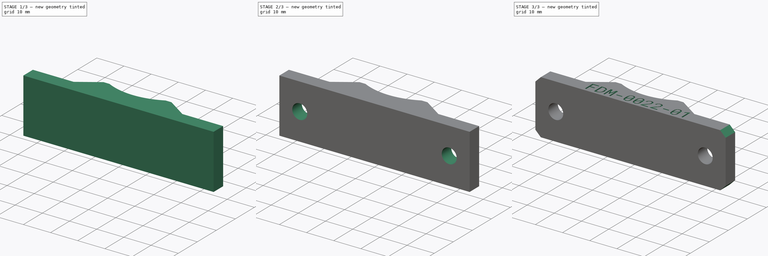
[diagram: build sequence overview — one tinted view per stage of 3, left to right]
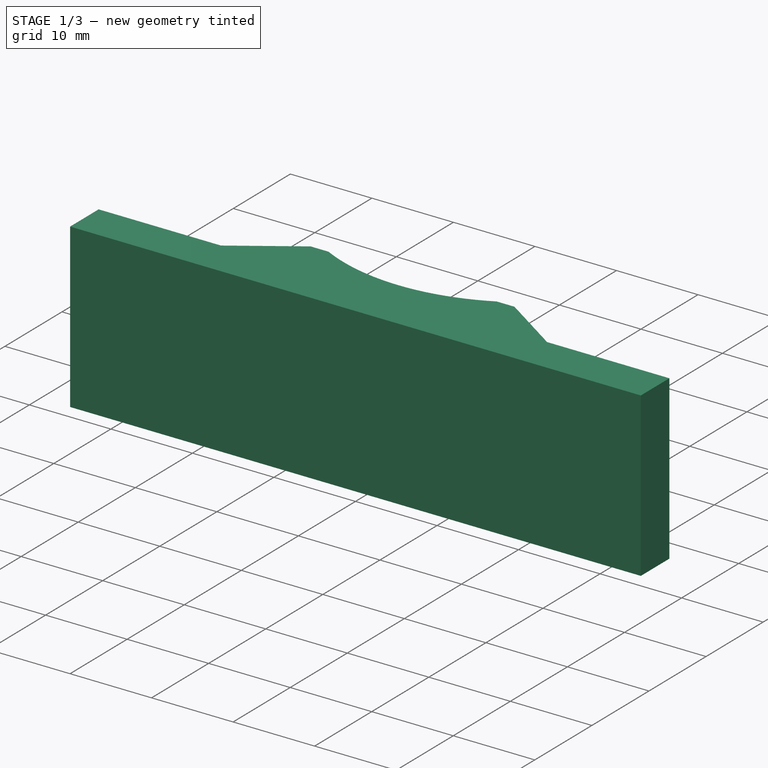
[diagram: stage 1 of 3 — iso view after this stage's code; geometry added in this stage tinted green]
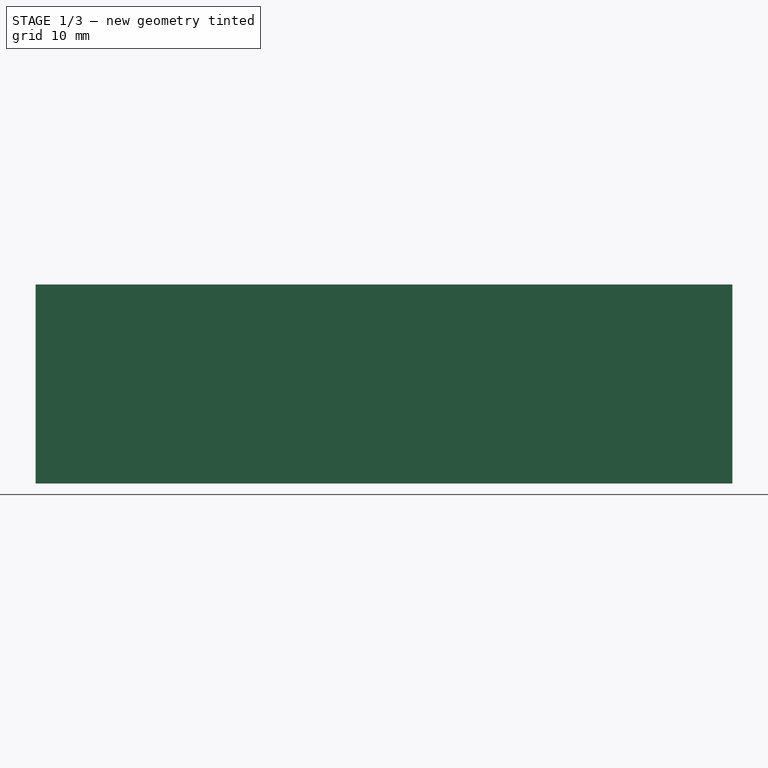
[diagram: stage 1 of 3 — front view after this stage's code; geometry added in this stage tinted green]
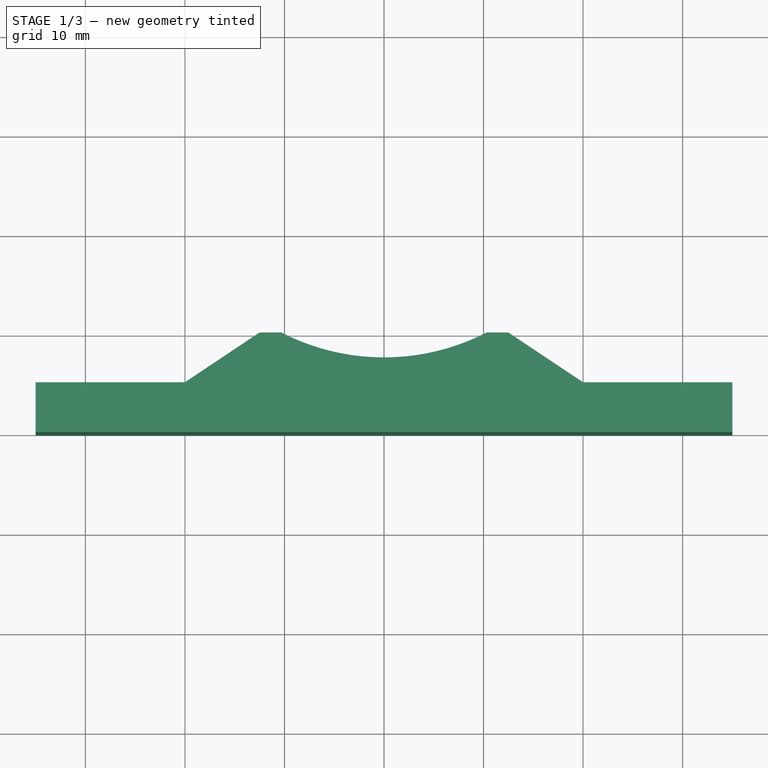
[diagram: stage 1 of 3 — top view after this stage's code; geometry added in this stage tinted green]
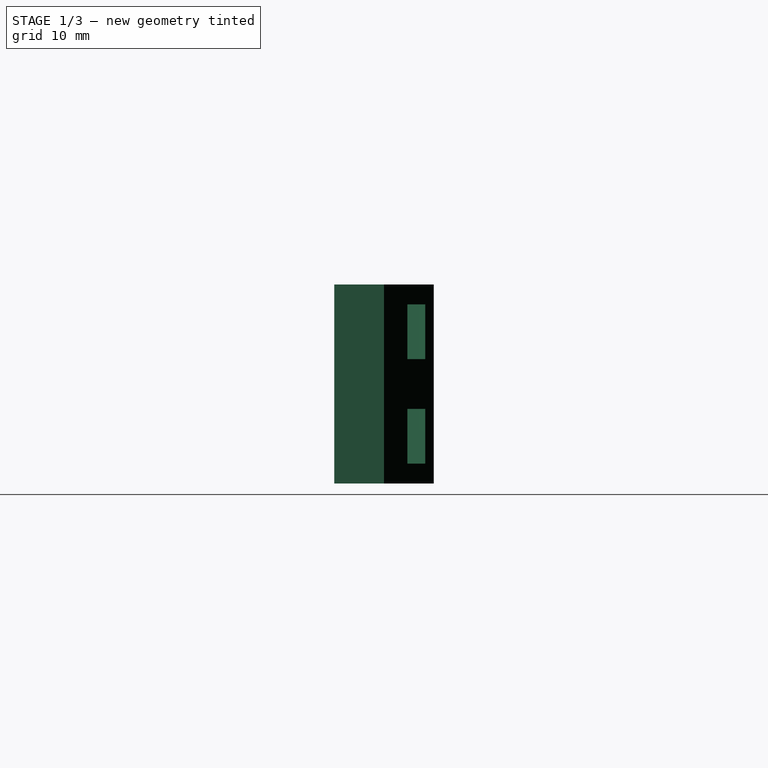
[diagram: stage 1 of 3 — right view after this stage's code; geometry added in this stage tinted green]
FCSTD DOCUMENT  (FreeCAD 0.19R24291 (Git))
Label: FDM-0022_umbilical-guide
License: All rights reserved
LicenseURL: http://en.wikipedia.org/wiki/All_rights_reserved
objects: Sketcher::SketchObject×3, PartDesign::Plane×3, PartDesign::Pocket×2, PartDesign::Pad×1, PartDesign::Groove×1, PartDesign::Chamfer×1, Part::Part2DObjectPython×1, PartDesign::Body×1
note: 18 computed .brp shape members not serialized (recipe doc carries the construction recipe); baked Part::Feature solids carry a one-line shape summary decoded from their .brp

FEATURE [Sketcher::SketchObject] Sketch
  FullyConstrained = true
  MapMode = 5
  Support = -> [XY_Plane]
  sketch-geometry (10):
    g0: LineSegment StartX=-35 StartY=0 StartZ=0 EndX=35 EndY=0 EndZ=0
    g1: LineSegment StartX=35 StartY=0 StartZ=0 EndX=35 EndY=5 EndZ=0
    g2: LineSegment StartX=35 StartY=5 StartZ=0 EndX=20 EndY=5 EndZ=0
    g3: LineSegment StartX=20 StartY=5 StartZ=0 EndX=12.5 EndY=10 EndZ=0
    g4: LineSegment StartX=12.5 StartY=10 StartZ=0 EndX=10.3078 EndY=10 EndZ=0
    g5: LineSegment StartX=-35 StartY=0 StartZ=0 EndX=-35 EndY=5 EndZ=0
    g6: LineSegment StartX=-35 StartY=5 StartZ=0 EndX=-20 EndY=5 EndZ=0
    g7: LineSegment StartX=-20 StartY=5 StartZ=0 EndX=-12.5 EndY=10 EndZ=0
    g8: LineSegment StartX=-12.5 StartY=10 StartZ=0 EndX=-10.3078 EndY=10 EndZ=0
    g9: ArcOfCircle CenterX=0 CenterY=30 CenterZ=0 NormalX=0 NormalY=0 NormalZ=1 AngleXU=0 Radius=22.5 StartAngle=4.23651 EndAngle=5.18827
  constraints (28):
    c: PointOnObject(g0,g-1)
    c: Coincident(g0,g1)
    c: Vertical(g1)
    c: Coincident(g1,g2)
    c: Horizontal(g2)
    c: Coincident(g2,g3)
    c: Coincident(g3,g4)
    c: Horizontal(g4)
    c: Coincident(g0,g5)
    c: Vertical(g5)
    c: Coincident(g5,g6)
    c: Coincident(g6,g7)
    c: Coincident(g7,g8)
    c: PointOnObject(g9,g-2)
    c: Coincident(g9,g8)
    c: Coincident(g9,g4)
    c: Symmetric(g0,g0,g-2)
    c: DistanceX(g0,g0) = 70
    c: Horizontal(g8)
    c: DistanceY(g5,g5) = 5
    c: Equal(g5,g1)
    c: Symmetric(g7,g3,g-2)
    c: Symmetric(g6,g2,g-2)
    c: DistanceX(g6,g2) = 40
    c: Diameter(g9) = 45
    c: DistanceY(g-1,g7) = 10
    c: DistanceX(g7,g3) = 25
    c: DistanceY(g-1,g9) = 30
FEATURE [PartDesign::Pad] Pad
  AllowMultiFace = false
  Direction = (1,1,1)
  Length = 10
  Length2 = 10
  Profile = -> Sketch
  Type = 4
FEATURE [PartDesign::Plane] DatumPlane
  AttachmentOffset = pos=(0,0,-30) rot=(0,0,1;0rad)
  Length = 81.8322
  MapMode = 5
  Placement = pos=(0,30,-6.7e-15) rot=(1,0,0;1.5708rad)
  ResizeMode = 0
  Support = -> [Pad]
  Width = 61.8322
FEATURE [Sketcher::SketchObject] Sketch001
  FullyConstrained = true
  MapMode = 5
  Placement = pos=(0,30,-6.7e-15) rot=(1,0,0;1.5708rad)
  Support = -> [DatumPlane]
  sketch-geometry (8):
    g0: LineSegment StartX=-28 StartY=2.5 StartZ=0 EndX=-25 EndY=2.5 EndZ=0
    g1: LineSegment StartX=-25 StartY=2.5 StartZ=0 EndX=-25 EndY=8 EndZ=0
    g2: LineSegment StartX=-25 StartY=8 StartZ=0 EndX=-28 EndY=8 EndZ=0
    g3: LineSegment StartX=-28 StartY=8 StartZ=0 EndX=-28 EndY=2.5 EndZ=0
    g4: LineSegment StartX=-28 StartY=-2.5 StartZ=0 EndX=-25 EndY=-2.5 EndZ=0
    g5: LineSegment StartX=-25 StartY=-2.5 StartZ=0 EndX=-25 EndY=-8 EndZ=0
    g6: LineSegment StartX=-25 StartY=-8 StartZ=0 EndX=-28 EndY=-8 EndZ=0
    g7: LineSegment StartX=-28 StartY=-8 StartZ=0 EndX=-28 EndY=-2.5 EndZ=0
  constraints (24):
    c: Coincident(g0,g1)
    c: Coincident(g1,g2)
    c: Coincident(g2,g3)
    c: Coincident(g3,g0)
    c: Horizontal(g0)
    c: Horizontal(g2)
    c: Vertical(g3)
    c: DistanceX(g1,g-1) = 25
    c: DistanceX(g2,g2) = 3
    c: DistanceY(g3,g3) = 5.5
    c: Coincident(g4,g5)
    c: Coincident(g5,g6)
    c: Coincident(g6,g7)
    c: Coincident(g7,g4)
    c: Horizontal(g4)
    c: Horizontal(g6)
    c: Vertical(g5)
    c: Vertical(g7)
    c: DistanceX(g4,g4) = 3
    c: DistanceY(g7,g7) = 5.5
    c: DistanceX(g4,g-1) = 25
    c: DistanceY(g-1,g1) = 8
    c: DistanceY(g5,g-1) = 8
    c: Vertical(g1)
FEATURE [PartDesign::Groove] Groove
  AllowMultiFace = false
  Angle = 360
  Axis = (0,2e-16,1)
  Base = (0,30,-6.7e-15)
  BaseFeature = -> Pad
  Profile = -> Sketch001
  ReferenceAxis = -> Sketch001 [V_Axis]
  Reversed = true
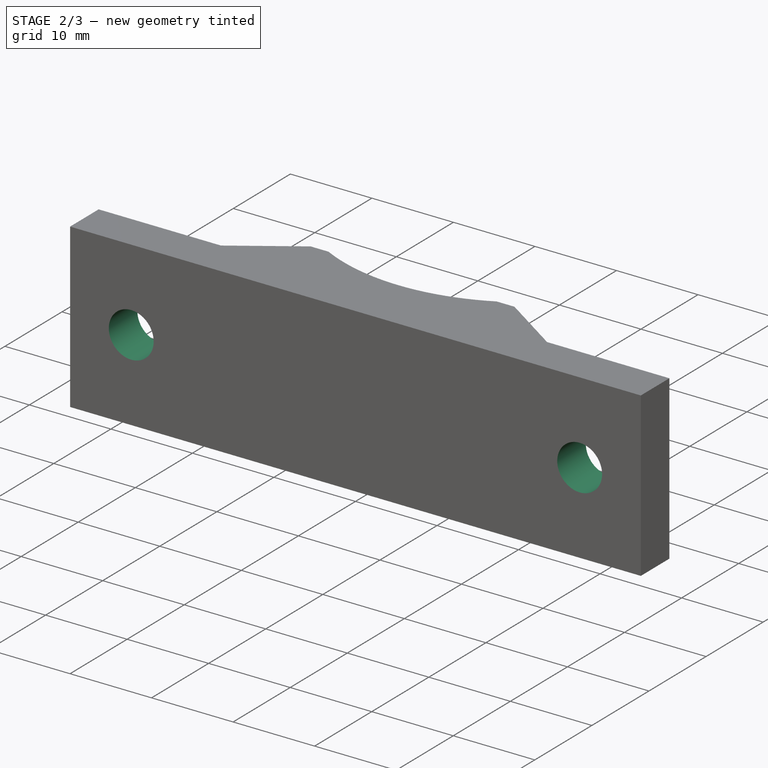
[diagram: stage 2 of 3 — iso view after this stage's code; geometry added in this stage tinted green]
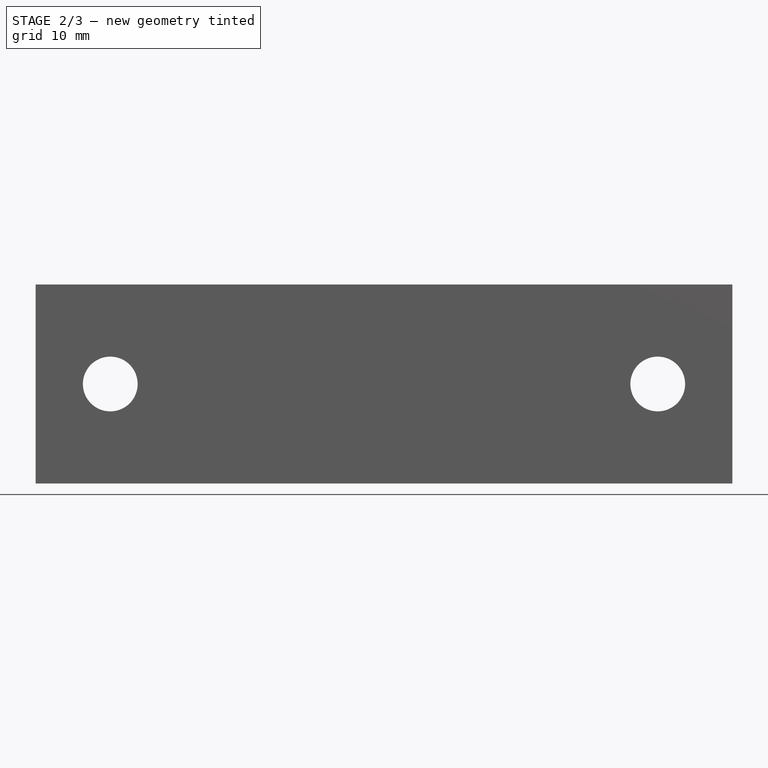
[diagram: stage 2 of 3 — front view after this stage's code; geometry added in this stage tinted green]
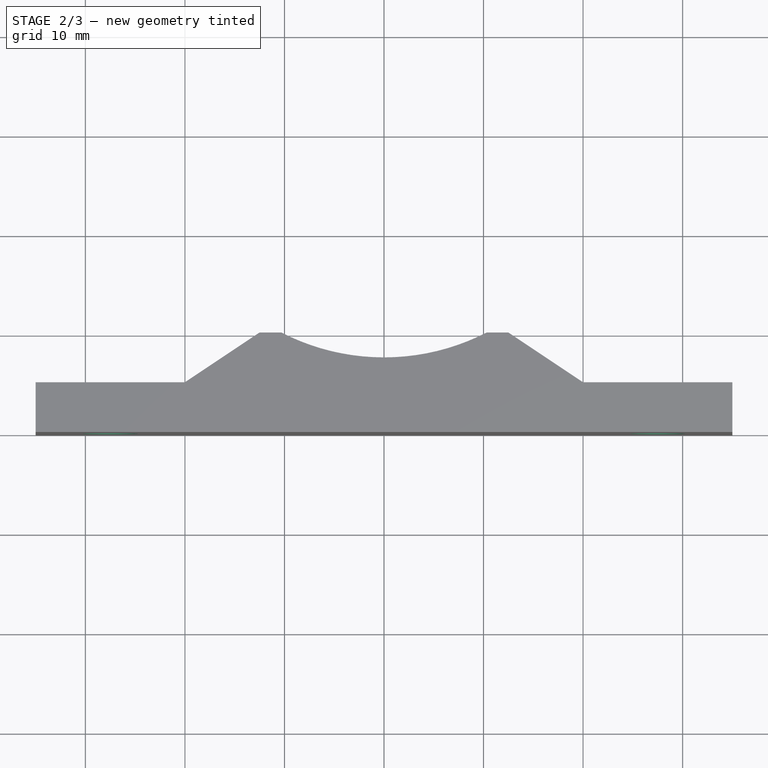
[diagram: stage 2 of 3 — top view after this stage's code; geometry added in this stage tinted green]
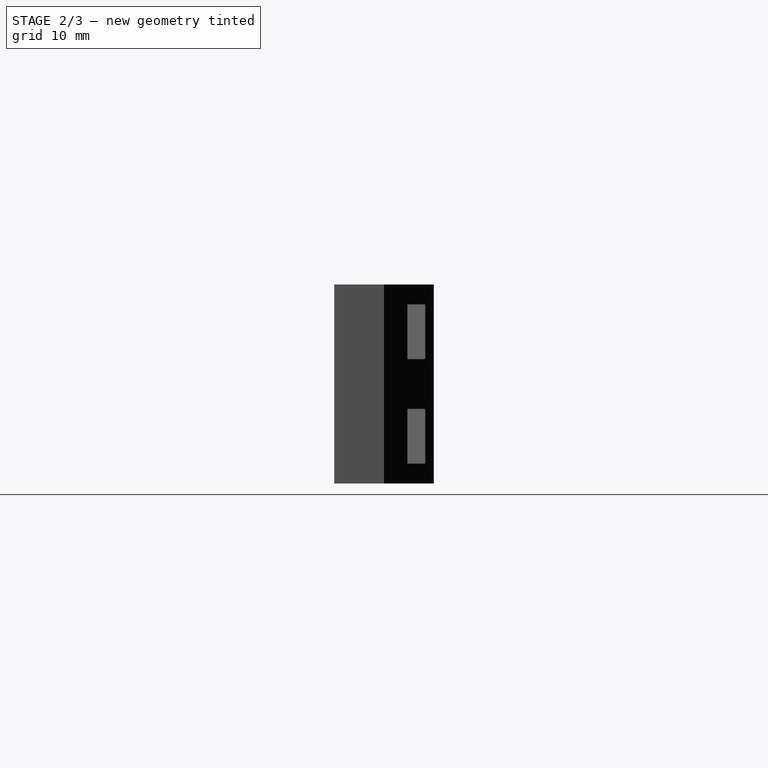
[diagram: stage 2 of 3 — right view after this stage's code; geometry added in this stage tinted green]
FEATURE [Sketcher::SketchObject] Sketch002
  FullyConstrained = true
  MapMode = 5
  Placement = pos=(0,0,0) rot=(1,0,0;1.5708rad)
  Support = -> [XZ_Plane]
  sketch-geometry (2):
    g0: Circle CenterX=-27.5 CenterY=0 CenterZ=0 NormalX=0 NormalY=0 NormalZ=1 AngleXU=0 Radius=2.75
    g1: Circle CenterX=27.5 CenterY=0 CenterZ=0 NormalX=0 NormalY=0 NormalZ=1 AngleXU=0 Radius=2.75
  constraints (6):
    c: PointOnObject(g0,g-1)
    c: PointOnObject(g1,g-1)
    c: Diameter(g0) = 5.5
    c: Diameter(g1) = 5.5
    c: DistanceX(g0,g-1) = 27.5
    c: DistanceX(g-1,g1) = 27.5
FEATURE [PartDesign::Pocket] Pocket
  AllowMultiFace = false
  BaseFeature = -> Groove
  Length = 5
  Length2 = 100
  Profile = -> Sketch002
  Type = 0
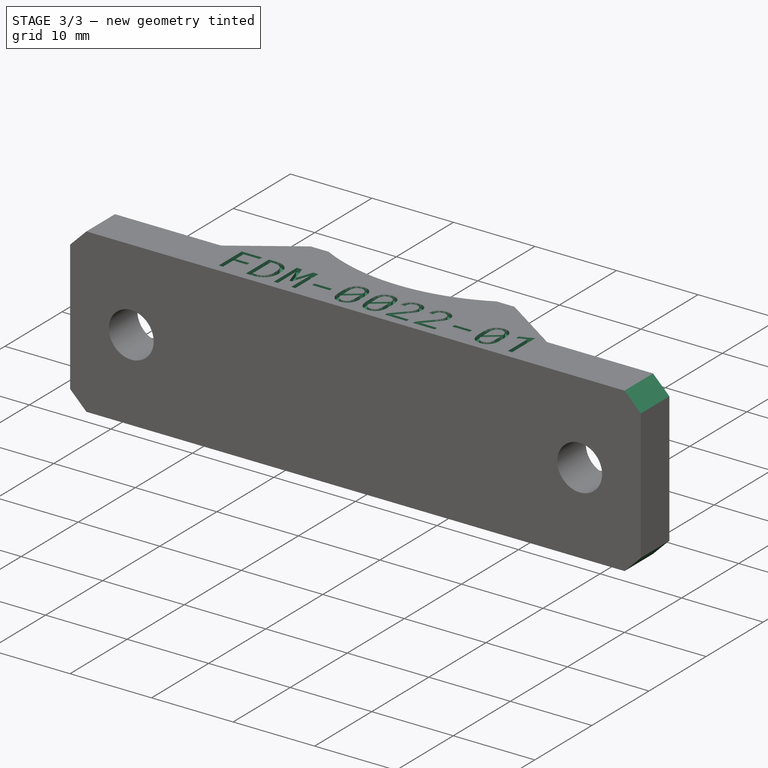
[diagram: stage 3 of 3 — iso view after this stage's code; geometry added in this stage tinted green]
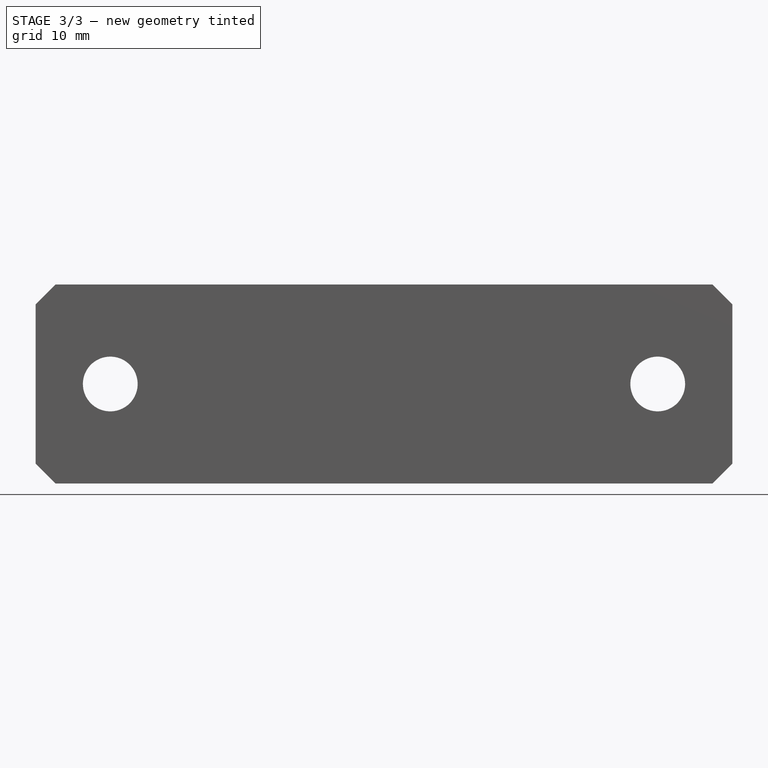
[diagram: stage 3 of 3 — front view after this stage's code; geometry added in this stage tinted green]
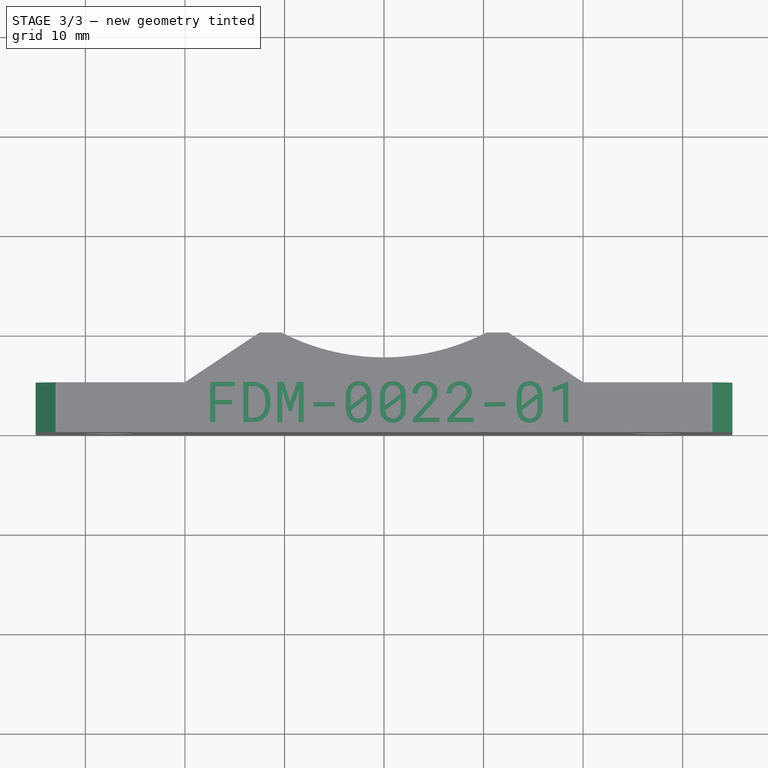
[diagram: stage 3 of 3 — top view after this stage's code; geometry added in this stage tinted green]
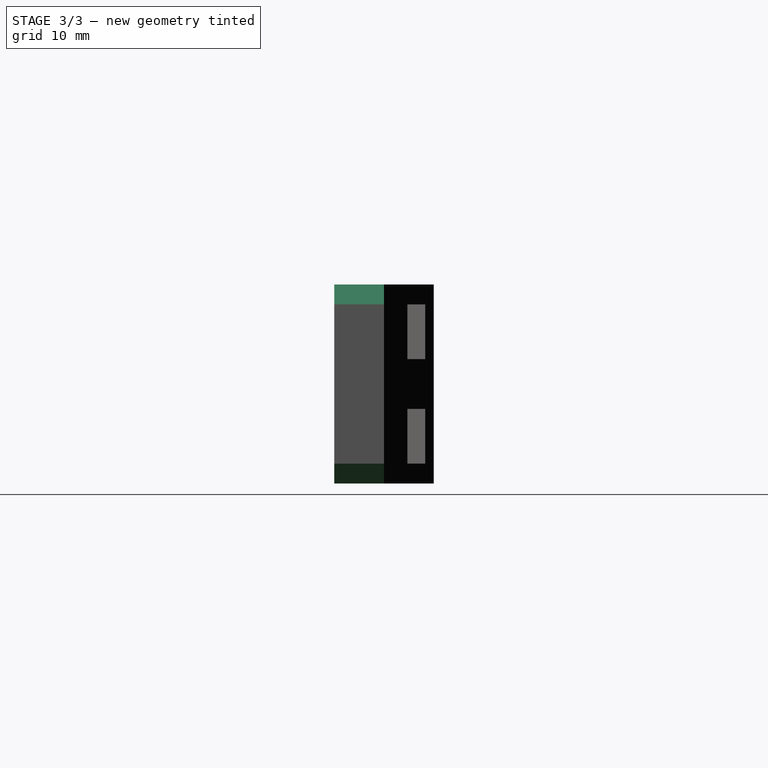
[diagram: stage 3 of 3 — right view after this stage's code; geometry added in this stage tinted green]
FEATURE [PartDesign::Chamfer] Chamfer
  Angle = 45
  Base = -> Pocket [Edge9,Edge8,Edge10,Edge18]
  BaseFeature = -> Pocket
  ChamferType = 0
  FlipDirection = false
  Size = 2
  Size2 = 1
  SupportTransform = false
FEATURE [PartDesign::Plane] DatumPlane001
  Length = 81.8322
  MapMode = 5
  Placement = pos=(0,0,-10) rot=(1,0,0;3.14159rad)
  ResizeMode = 0
  Support = -> [Chamfer]
  Width = 61.8322
FEATURE [PartDesign::Plane] DatumPlane002  label="PrintPlane"
  Length = 81.8322
  MapMode = 3
  Placement = pos=(0,0,0) rot=(1,0,0;1.5708rad)
  ResizeMode = 0
  Support = -> [XY_Plane]
  Width = 61.8322
FEATURE [Part::Part2DObjectPython] ShapeString001  label="PN"  # Draft 2D object (typed FeaturePython)
  FontFile = ../../lib/fonts/RobotoMono-VariableFont_weight.ttf
  MapMode = 2
  Placement = pos=(-18,1,10) rot=(0,0,1;0rad)
  Size = 5
  String = FDM-0022-01
  Tracking = 0
FEATURE [PartDesign::Pocket] Pocket002
  BaseFeature = -> Chamfer
  Length = 0.5
  Length2 = 100
  Profile = -> ShapeString001
  Type = 0
FEATURE [PartDesign::Body] Body
  Group = -> [Sketch,Pad,DatumPlane,Sketch001,Groove,Sketch002,Pocket,Chamfer,DatumPlane001,DatumPlane002,ShapeString001,Pocket002]
  Origin = -> Origin
  Tip = -> Pocket002
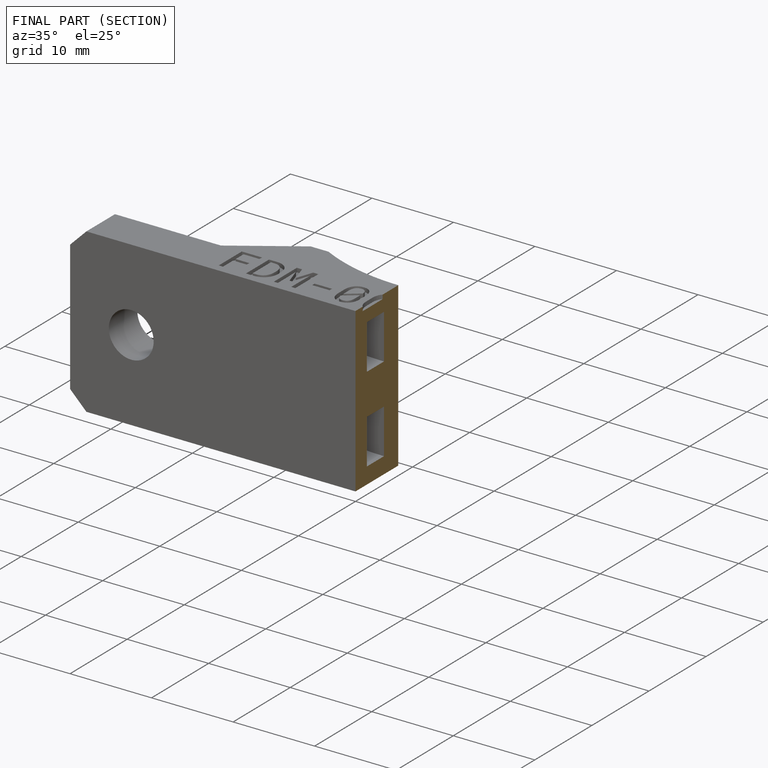
[diagram: finished part — half-section view (interior)]
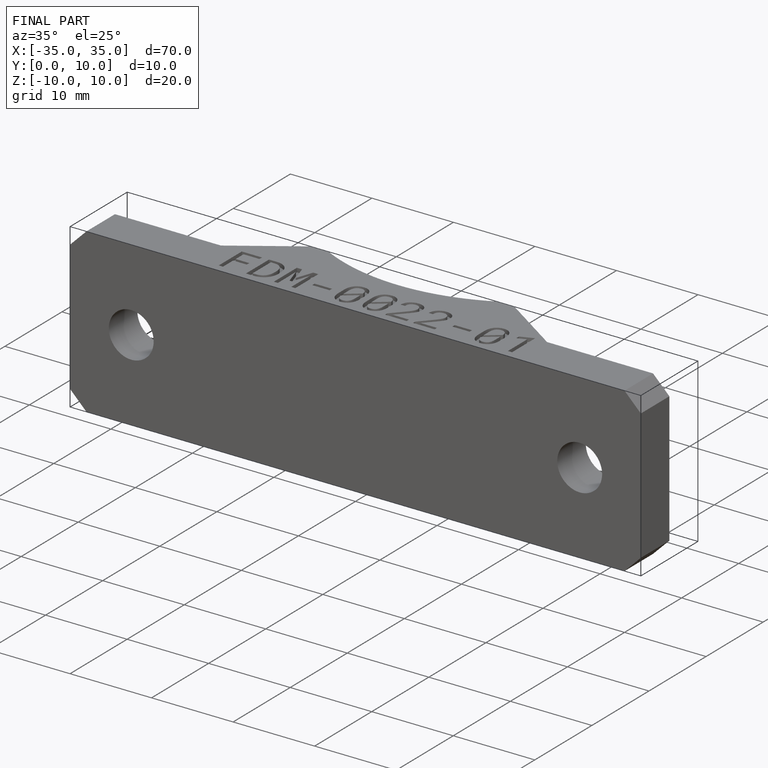
[diagram: finished part — iso view with bounding-box wireframe]
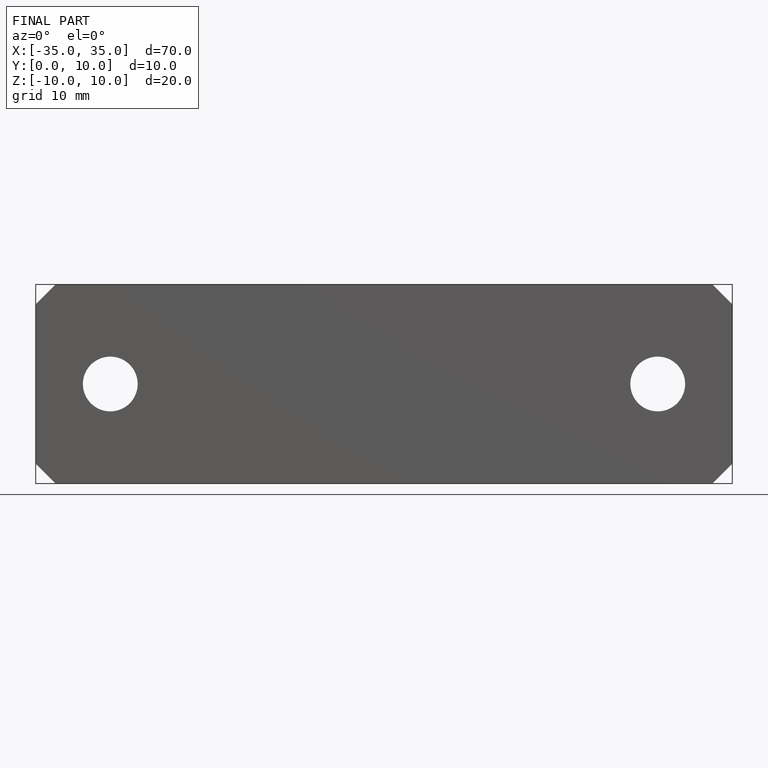
[diagram: finished part — front view with bounding-box wireframe]
